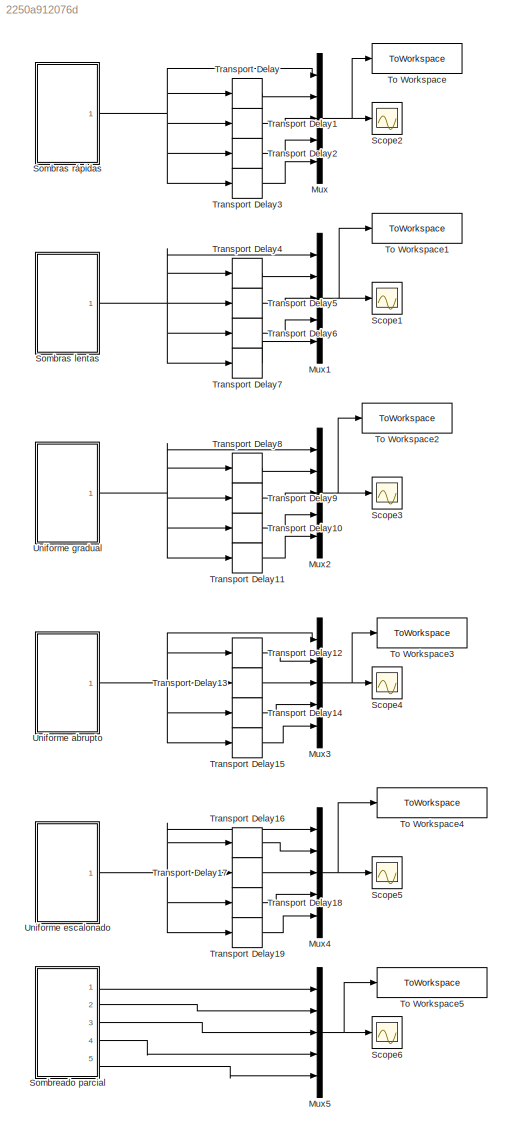
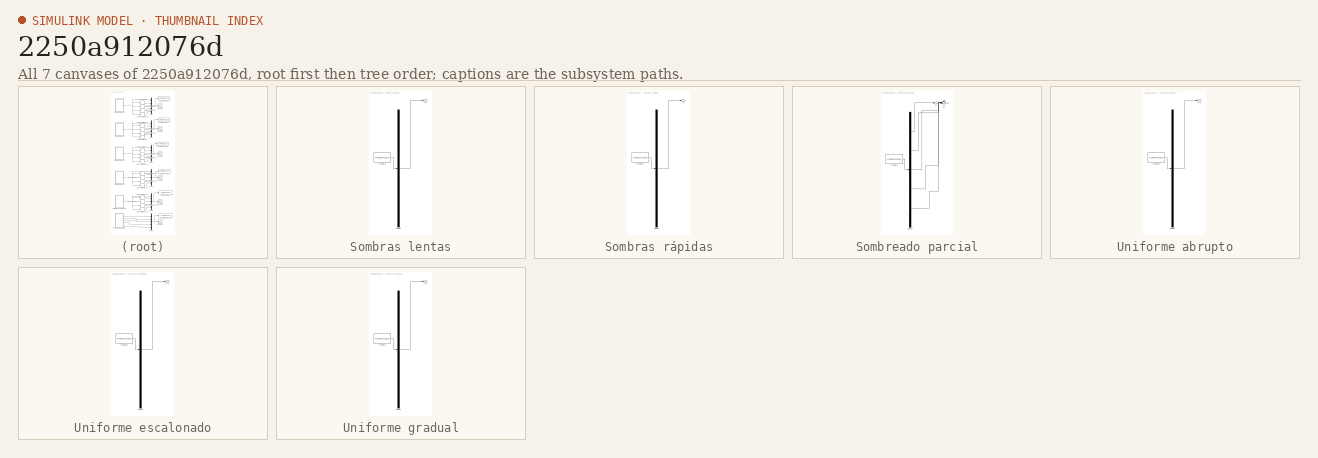
[diagram: thumbnail index - all 7 canvases of the model, root first then tree order]
MODEL slx_2250a912076d
KIND model
CONFIG AbsTol = auto
CONFIG EnableMultiTasking = off
CONFIG FixedStep = auto
CONFIG MaxStep = auto
CONFIG MinStep = auto
CONFIG RelTol = 1e-8
CONFIG SampleTimeConstraint = Unconstrained
CONFIG SolverName = VariableStepAuto
CONFIG StartTime = 0.0
CONFIG StopTime = 60
BLOCK [Mux] Mux
  DisplayOption = bar
  Inputs = 5
  Ports = [5, 1]
BLOCK [Mux] Mux1
  DisplayOption = bar
  Inputs = 5
  Ports = [5, 1]
BLOCK [Mux] Mux2
  DisplayOption = bar
  Inputs = 5
  Ports = [5, 1]
BLOCK [Mux] Mux3
  DisplayOption = bar
  Inputs = 5
  Ports = [5, 1]
BLOCK [Mux] Mux4
  DisplayOption = bar
  Inputs = 5
  Ports = [5, 1]
BLOCK [Mux] Mux5
  DisplayOption = bar
  Inputs = 5
  Ports = [5, 1]
BLOCK [Scope] Scope1
  Floating = off
  NumInputPorts = 1
  Ports = [1]
  ScopeSpecificationString = Simulink.scopes.TimeScopeBlockCfg('CurrentConfiguration', extmgr.ConfigurationSet(extmgr.Configuration('Core','General UI',true,'FigureColor',[1 1 1]),extmgr.Configuration('Core','Source UI',true),extmgr.Configuration('Sources','WiredSimulink',true,'SampleTime','0.0001','DataLoggingVariableName','ScopeData1'),extmgr.Configuration('Visuals','Time Domain',true,'SerializedDisplays',{struct('MinYLimRe...<+2222ch>
BLOCK [Scope] Scope2
  Floating = off
  NumInputPorts = 1
  Ports = [1]
  ScopeSpecificationString = Simulink.scopes.TimeScopeBlockCfg('CurrentConfiguration', extmgr.ConfigurationSet(extmgr.Configuration('Core','General UI',true,'FigureColor',[1 1 1]),extmgr.Configuration('Core','Source UI',true),extmgr.Configuration('Sources','WiredSimulink',true,'SampleTime','1e-4'),extmgr.Configuration('Visuals','Time Domain',true,'SerializedDisplays',{struct('MinYLimReal','212.5','MaxYLimReal','987.5','YLabel...<+2201ch>
BLOCK [Scope] Scope3
  Floating = off
  NumInputPorts = 1
  Ports = [1]
  ScopeSpecificationString = Simulink.scopes.TimeScopeBlockCfg('CurrentConfiguration', extmgr.ConfigurationSet(extmgr.Configuration('Core','General UI',true,'FigureColor',[1 1 1]),extmgr.Configuration('Core','Source UI',true),extmgr.Configuration('Sources','WiredSimulink',true,'SampleTime','0.0001','DataLoggingVariableName','ScopeData2'),extmgr.Configuration('Visuals','Time Domain',true,'SerializedDisplays',{struct('MinYLimRe...<+2246ch>
BLOCK [Scope] Scope4
  Floating = off
  NumInputPorts = 1
  Ports = [1]
  ScopeSpecificationString = Simulink.scopes.TimeScopeBlockCfg('CurrentConfiguration', extmgr.ConfigurationSet(extmgr.Configuration('Core','General UI',true,'FigureColor',[1 1 1]),extmgr.Configuration('Core','Source UI',true),extmgr.Configuration('Sources','WiredSimulink',true,'SampleTime','0.0001','DataLoggingVariableName','ScopeData3'),extmgr.Configuration('Visuals','Time Domain',true,'SerializedDisplays',{struct('MinYLimRe...<+2248ch>
BLOCK [Scope] Scope5
  Floating = off
  NumInputPorts = 1
  Ports = [1]
  ScopeSpecificationString = Simulink.scopes.TimeScopeBlockCfg('CurrentConfiguration', extmgr.ConfigurationSet(extmgr.Configuration('Core','General UI',true,'FigureColor',[1 1 1]),extmgr.Configuration('Core','Source UI',true),extmgr.Configuration('Sources','WiredSimulink',true,'SampleTime','0.0001','DataLoggingVariableName','ScopeData4'),extmgr.Configuration('Visuals','Time Domain',true,'SerializedDisplays',{struct('MinYLimRe...<+2251ch>
BLOCK [Scope] Scope6
  Floating = off
  NumInputPorts = 1
  Ports = [1]
  ScopeSpecificationString = Simulink.scopes.TimeScopeBlockCfg('CurrentConfiguration', extmgr.ConfigurationSet(extmgr.Configuration('Core','General UI',true,'FigureColor',[1 1 1]),extmgr.Configuration('Core','Source UI',true),extmgr.Configuration('Sources','WiredSimulink',true,'SampleTime','0.0001','DataLoggingVariableName','ScopeData5'),extmgr.Configuration('Visuals','Time Domain',true,'SerializedDisplays',{struct('MinYLimRe...<+2255ch>
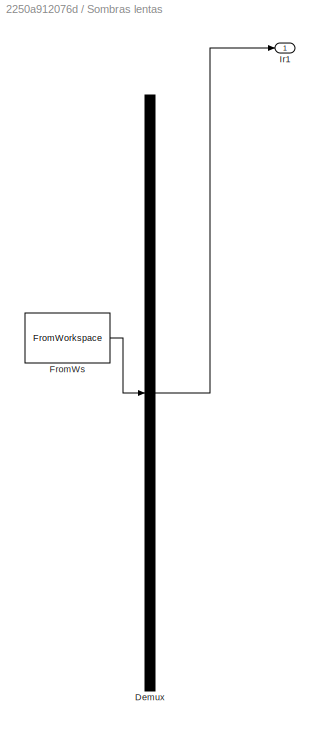
BLOCK [SubSystem] Sombras lentas
  ClipboardFcn = sigbuilder_block('clipboard');
  CloseFcn = sigbuilder_block('close');
  ContinueFcn = sigbuilder_block('continue');
  CopyFcn = sigbuilder_block('copy');
  DeleteFcn = sigbuilder_block('delete');
  LoadFcn = sigbuilder_block('load');
  MaskHideContents = on
  ModelCloseFcn = sigbuilder_block('modelClose');
  NameChangeFcn = sigbuilder_block('namechange');
  OpenFcn = sigbuilder_block('open',[6 30 1908 951.75 ]);
  PauseFcn = sigbuilder_block('pause');
  Ports = [0, 1]
  PreSaveFcn = sigbuilder_block('preSave');
  RequestExecContextInheritance = off
  StartFcn = sigbuilder_block('start');
  StopFcn = sigbuilder_block('stop');
  Tag = STV Subsys
BLOCK [Demux] Sombras lentas/Demux
  DisplayOption = none
  Outputs = 1
  Ports = [1, 1]
  Tag = STV Demux
BLOCK [FromWorkspace] Sombras lentas/FromWs
  Tag = STV FromWs
  VariableName = tuvar
BLOCK [Outport] Sombras lentas/Ir1
  Tag = STV Outport
BLOCK [SubSystem] Sombras rápidas
  ClipboardFcn = sigbuilder_block('clipboard');
  CloseFcn = sigbuilder_block('close');
  ContinueFcn = sigbuilder_block('continue');
  CopyFcn = sigbuilder_block('copy');
  DeleteFcn = sigbuilder_block('delete');
  LoadFcn = sigbuilder_block('load');
  MaskHideContents = on
  ModelCloseFcn = sigbuilder_block('modelClose');
  NameChangeFcn = sigbuilder_block('namechange');
  OpenFcn = sigbuilder_block('open',[59.25 144.75 1440 681.75 ]);
  PauseFcn = sigbuilder_block('pause');
  Ports = [0, 1]
  PreSaveFcn = sigbuilder_block('preSave');
  RequestExecContextInheritance = off
  StartFcn = sigbuilder_block('start');
  StopFcn = sigbuilder_block('stop');
  Tag = STV Subsys
BLOCK [Demux] Sombras rápidas/Demux
  DisplayOption = none
  Outputs = 1
  Ports = [1, 1]
  Tag = STV Demux
BLOCK [FromWorkspace] Sombras rápidas/FromWs
  Tag = STV FromWs
  VariableName = tuvar
BLOCK [Outport] Sombras rápidas/Ir1
  Tag = STV Outport
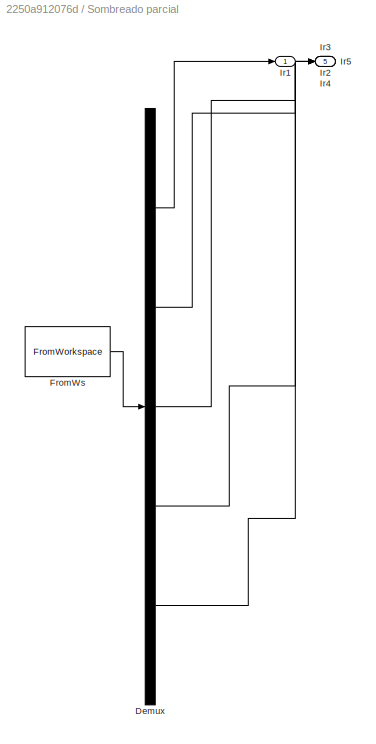
BLOCK [SubSystem] Sombreado parcial
  ClipboardFcn = sigbuilder_block('clipboard');
  CloseFcn = sigbuilder_block('close');
  ContinueFcn = sigbuilder_block('continue');
  CopyFcn = sigbuilder_block('copy');
  DeleteFcn = sigbuilder_block('delete');
  LoadFcn = sigbuilder_block('load');
  MaskHideContents = on
  ModelCloseFcn = sigbuilder_block('modelClose');
  NameChangeFcn = sigbuilder_block('namechange');
  OpenFcn = sigbuilder_block('open',[6 30 1908 951.75 ]);
  PauseFcn = sigbuilder_block('pause');
  Ports = [0, 5]
  PreSaveFcn = sigbuilder_block('preSave');
  RequestExecContextInheritance = off
  StartFcn = sigbuilder_block('start');
  StopFcn = sigbuilder_block('stop');
  Tag = STV Subsys
BLOCK [Demux] Sombreado parcial/Demux
  DisplayOption = none
  Outputs = 5
  Ports = [1, 5]
  Tag = STV Demux
BLOCK [FromWorkspace] Sombreado parcial/FromWs
  Tag = STV FromWs
  VariableName = tuvar
BLOCK [Outport] Sombreado parcial/Ir1
  Tag = STV Outport
BLOCK [Outport] Sombreado parcial/Ir2
  Port = 2
  Tag = STV Outport
BLOCK [Outport] Sombreado parcial/Ir3
  Port = 3
  Tag = STV Outport
BLOCK [Outport] Sombreado parcial/Ir4
  Port = 4
  Tag = STV Outport
BLOCK [Outport] Sombreado parcial/Ir5
  Port = 5
  Tag = STV Outport
BLOCK [ToWorkspace] To Workspace
  FixptAsFi = on
  MaxDataPoints = inf
  Ports = [1]
  SampleTime = 1e-3
  VariableName = Sombras_rapidas
BLOCK [ToWorkspace] To Workspace1
  FixptAsFi = on
  MaxDataPoints = inf
  Ports = [1]
  SampleTime = 1e-3
  VariableName = Sombras_lentas
BLOCK [ToWorkspace] To Workspace2
  FixptAsFi = on
  MaxDataPoints = inf
  Ports = [1]
  SampleTime = 1e-3
  VariableName = Uniforme_gradual
BLOCK [ToWorkspace] To Workspace3
  FixptAsFi = on
  MaxDataPoints = inf
  Ports = [1]
  SampleTime = 1e-3
  VariableName = Uniforme_abrupto
BLOCK [ToWorkspace] To Workspace4
  FixptAsFi = on
  MaxDataPoints = inf
  Ports = [1]
  SampleTime = 1e-3
  VariableName = Uniforme_escalonado
BLOCK [ToWorkspace] To Workspace5
  FixptAsFi = on
  MaxDataPoints = inf
  Ports = [1]
  SampleTime = 1e-3
  VariableName = Sombreado_parcial
BLOCK [TransportDelay] Transport Delay
  DelayTime = 0.1
  InitialOutput = 910
  Ports = [1, 1]
BLOCK [TransportDelay] Transport Delay1
  DelayTime = 0.2
  InitialOutput = 910
  Ports = [1, 1]
BLOCK [TransportDelay] Transport Delay10
  DelayTime = 0.3
  InitialOutput = 1000
  Ports = [1, 1]
BLOCK [TransportDelay] Transport Delay11
  DelayTime = 0.4
  InitialOutput = 1000
  Ports = [1, 1]
BLOCK [TransportDelay] Transport Delay12
  DelayTime = 0.1
  InitialOutput = 1000
  Ports = [1, 1]
BLOCK [TransportDelay] Transport Delay13
  DelayTime = 0.2
  InitialOutput = 1000
  Ports = [1, 1]
BLOCK [TransportDelay] Transport Delay14
  DelayTime = 0.3
  InitialOutput = 1000
  Ports = [1, 1]
BLOCK [TransportDelay] Transport Delay15
  DelayTime = 0.4
  InitialOutput = 1000
  Ports = [1, 1]
BLOCK [TransportDelay] Transport Delay16
  DelayTime = 0.1
  InitialOutput = 1000
  Ports = [1, 1]
BLOCK [TransportDelay] Transport Delay17
  DelayTime = 0.2
  InitialOutput = 1000
  Ports = [1, 1]
BLOCK [TransportDelay] Transport Delay18
  DelayTime = 0.3
  InitialOutput = 1000
  Ports = [1, 1]
BLOCK [TransportDelay] Transport Delay19
  DelayTime = 0.4
  InitialOutput = 1000
  Ports = [1, 1]
BLOCK [TransportDelay] Transport Delay2
  DelayTime = 0.3
  InitialOutput = 910
  Ports = [1, 1]
BLOCK [TransportDelay] Transport Delay3
  DelayTime = 0.4
  InitialOutput = 910
  Ports = [1, 1]
BLOCK [TransportDelay] Transport Delay4
  DelayTime = 0.1
  InitialOutput = 910
  Ports = [1, 1]
BLOCK [TransportDelay] Transport Delay5
  DelayTime = 0.2
  InitialOutput = 910
  Ports = [1, 1]
BLOCK [TransportDelay] Transport Delay6
  DelayTime = 0.3
  InitialOutput = 910
  Ports = [1, 1]
BLOCK [TransportDelay] Transport Delay7
  DelayTime = 0.4
  InitialOutput = 910
  Ports = [1, 1]
BLOCK [TransportDelay] Transport Delay8
  DelayTime = 0.1
  InitialOutput = 1000
  Ports = [1, 1]
BLOCK [TransportDelay] Transport Delay9
  DelayTime = 0.2
  InitialOutput = 1000
  Ports = [1, 1]
BLOCK [SubSystem] Uniforme abrupto
  ClipboardFcn = sigbuilder_block('clipboard');
  CloseFcn = sigbuilder_block('close');
  ContinueFcn = sigbuilder_block('continue');
  CopyFcn = sigbuilder_block('copy');
  DeleteFcn = sigbuilder_block('delete');
  LoadFcn = sigbuilder_block('load');
  MaskHideContents = on
  ModelCloseFcn = sigbuilder_block('modelClose');
  NameChangeFcn = sigbuilder_block('namechange');
  OpenFcn = sigbuilder_block('open',[6 30 1908 951.75 ]);
  PauseFcn = sigbuilder_block('pause');
  Ports = [0, 1]
  PreSaveFcn = sigbuilder_block('preSave');
  RequestExecContextInheritance = off
  StartFcn = sigbuilder_block('start');
  StopFcn = sigbuilder_block('stop');
  Tag = STV Subsys
BLOCK [Demux] Uniforme abrupto/Demux
  DisplayOption = none
  Outputs = 1
  Ports = [1, 1]
  Tag = STV Demux
BLOCK [FromWorkspace] Uniforme abrupto/FromWs
  Tag = STV FromWs
  VariableName = tuvar
BLOCK [Outport] Uniforme abrupto/Ir1
  Tag = STV Outport
BLOCK [SubSystem] Uniforme escalonado
  ClipboardFcn = sigbuilder_block('clipboard');
  CloseFcn = sigbuilder_block('close');
  ContinueFcn = sigbuilder_block('continue');
  CopyFcn = sigbuilder_block('copy');
  DeleteFcn = sigbuilder_block('delete');
  LoadFcn = sigbuilder_block('load');
  MaskHideContents = on
  ModelCloseFcn = sigbuilder_block('modelClose');
  NameChangeFcn = sigbuilder_block('namechange');
  OpenFcn = sigbuilder_block('open',[6 30 1908 951.75 ]);
  PauseFcn = sigbuilder_block('pause');
  Ports = [0, 1]
  PreSaveFcn = sigbuilder_block('preSave');
  RequestExecContextInheritance = off
  StartFcn = sigbuilder_block('start');
  StopFcn = sigbuilder_block('stop');
  Tag = STV Subsys
BLOCK [Demux] Uniforme escalonado/Demux
  DisplayOption = none
  Outputs = 1
  Ports = [1, 1]
  Tag = STV Demux
BLOCK [FromWorkspace] Uniforme escalonado/FromWs
  Tag = STV FromWs
  VariableName = tuvar
BLOCK [Outport] Uniforme escalonado/Ir1
  Tag = STV Outport
BLOCK [SubSystem] Uniforme gradual
  ClipboardFcn = sigbuilder_block('clipboard');
  CloseFcn = sigbuilder_block('close');
  ContinueFcn = sigbuilder_block('continue');
  CopyFcn = sigbuilder_block('copy');
  DeleteFcn = sigbuilder_block('delete');
  LoadFcn = sigbuilder_block('load');
  MaskHideContents = on
  ModelCloseFcn = sigbuilder_block('modelClose');
  NameChangeFcn = sigbuilder_block('namechange');
  OpenFcn = sigbuilder_block('open',[6 30 1908 951.75 ]);
  PauseFcn = sigbuilder_block('pause');
  Ports = [0, 1]
  PreSaveFcn = sigbuilder_block('preSave');
  RequestExecContextInheritance = off
  StartFcn = sigbuilder_block('start');
  StopFcn = sigbuilder_block('stop');
  Tag = STV Subsys
BLOCK [Demux] Uniforme gradual/Demux
  DisplayOption = none
  Outputs = 1
  Ports = [1, 1]
  Tag = STV Demux
BLOCK [FromWorkspace] Uniforme gradual/FromWs
  Tag = STV FromWs
  VariableName = tuvar
BLOCK [Outport] Uniforme gradual/Ir1
  Tag = STV Outport
NET Mux1:1 -> Scope1:1, To Workspace1:1
NET Mux2:1 -> Scope3:1, To Workspace2:1
NET Mux3:1 -> Scope4:1, To Workspace3:1
NET Mux4:1 -> Scope5:1, To Workspace4:1
NET Mux5:1 -> Scope6:1, To Workspace5:1
NET Mux:1 -> Scope2:1, To Workspace:1
NET Sombras lentas:1 -> Mux1:1, Transport Delay4:1, Transport Delay5:1, Transport Delay6:1, Transport Delay7:1
NET Sombras rápidas:1 -> Mux:1, Transport Delay1:1, Transport Delay2:1, Transport Delay3:1, Transport Delay:1
LINE Sombreado parcial:1 -> Mux5:1
LINE Sombreado parcial:2 -> Mux5:2
LINE Sombreado parcial:3 -> Mux5:3
LINE Sombreado parcial:4 -> Mux5:4
LINE Sombreado parcial:5 -> Mux5:5
LINE Transport Delay10:1 -> Mux2:4
LINE Transport Delay11:1 -> Mux2:5
LINE Transport Delay12:1 -> Mux3:2
LINE Transport Delay13:1 -> Mux3:3
LINE Transport Delay14:1 -> Mux3:4
LINE Transport Delay15:1 -> Mux3:5
LINE Transport Delay16:1 -> Mux4:2
LINE Transport Delay17:1 -> Mux4:3
LINE Transport Delay18:1 -> Mux4:4
LINE Transport Delay19:1 -> Mux4:5
LINE Transport Delay1:1 -> Mux:3
LINE Transport Delay2:1 -> Mux:4
LINE Transport Delay3:1 -> Mux:5
LINE Transport Delay4:1 -> Mux1:2
LINE Transport Delay5:1 -> Mux1:3
LINE Transport Delay6:1 -> Mux1:4
LINE Transport Delay7:1 -> Mux1:5
LINE Transport Delay8:1 -> Mux2:2
LINE Transport Delay9:1 -> Mux2:3
LINE Transport Delay:1 -> Mux:2
NET Uniforme abrupto:1 -> Mux3:1, Transport Delay12:1, Transport Delay13:1, Transport Delay14:1, Transport Delay15:1
NET Uniforme escalonado:1 -> Mux4:1, Transport Delay16:1, Transport Delay17:1, Transport Delay18:1, Transport Delay19:1
NET Uniforme gradual:1 -> Mux2:1, Transport Delay10:1, Transport Delay11:1, Transport Delay8:1, Transport Delay9:1
note: NET lines group one-source signal fan-out (src -> all destinations, sorted); 1:1 wires keep LINE
